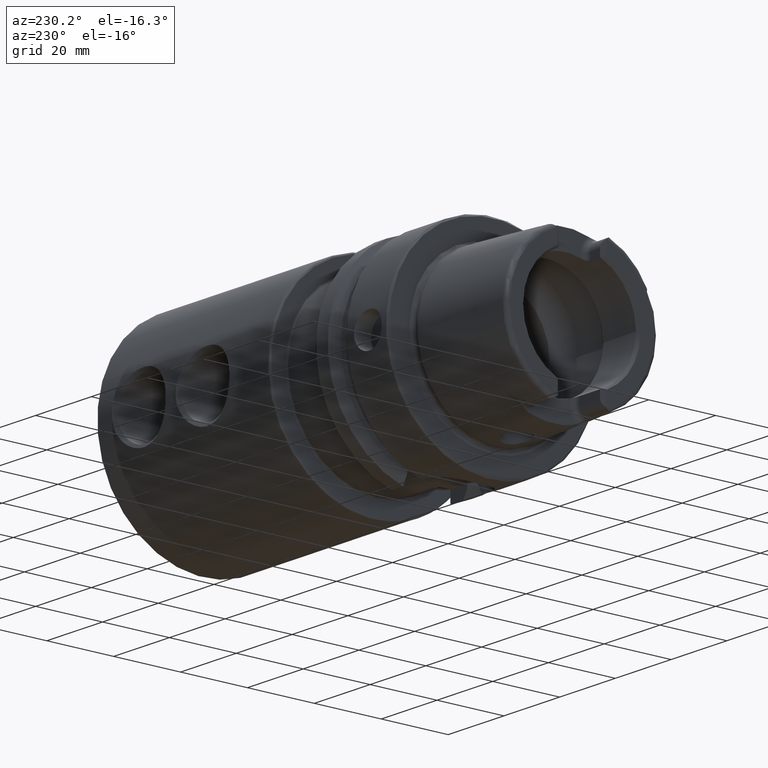
[diagram: clean part render]
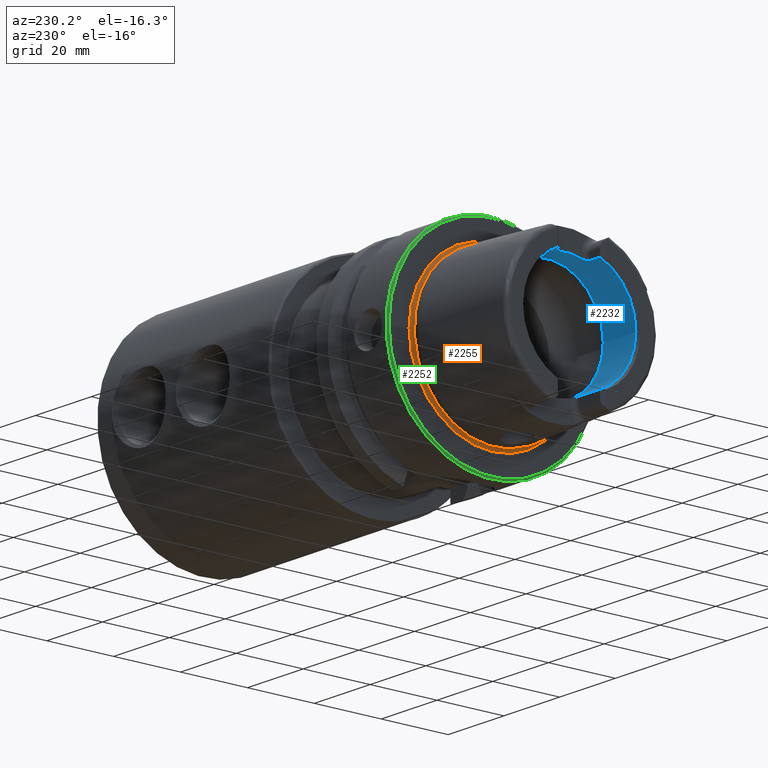
[diagram: same view with three faces highlighted in distinct colors, each labeled with its STEP entity id]
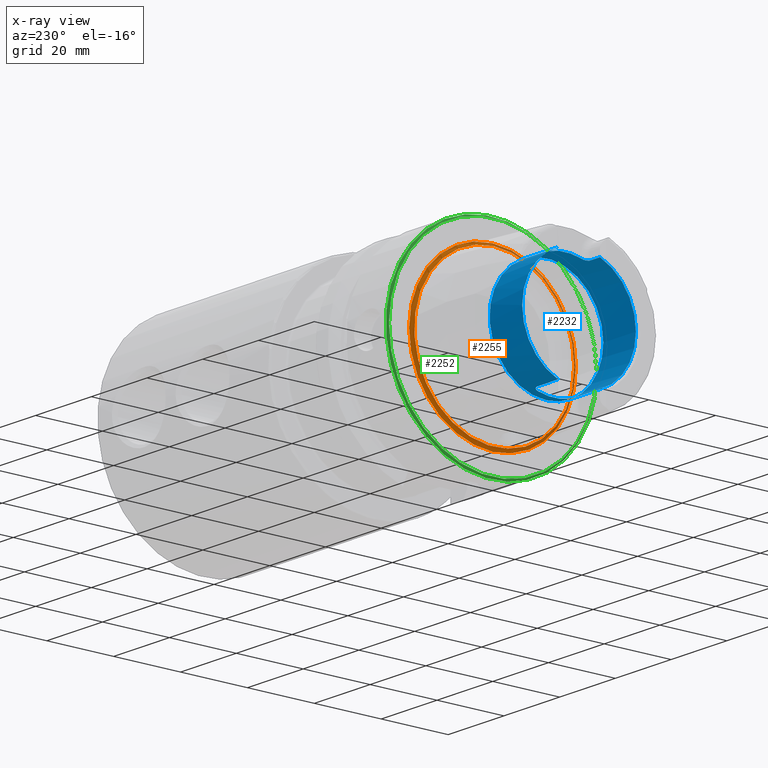
[diagram: x-ray of the same camera — body ghosted, the three highlighted faces saturated]
A machine part, auxiliary view with three faces highlighted in distinct colors.
The next image is the same camera in x-ray (body ghosted, the three faces saturated) — at least one of them is partly hidden behind the body in this view.
Their STEP definitions:

[orange] entity #2255 — the highlighted toroidal blend (fillet) surface has major radius 24.8204 mm and minor (blend) radius 0.8 mm.
#97=TOROIDAL_SURFACE('',#2541,24.8204308617234,0.8);
#361=FACE_OUTER_BOUND('',#505,.T.);
#505=EDGE_LOOP('',(#2107,#2108,#2109,#2110,#2111,#2112));
#863=CIRCLE('',#2530,24.9317693424915);
#864=CIRCLE('',#2531,24.9317693424915);
#868=CIRCLE('',#2539,24.0204308617234);
#869=CIRCLE('',#2540,24.0204308617234);
#870=CIRCLE('',#2542,0.8);
#1086=VERTEX_POINT('',#5122);
#1087=VERTEX_POINT('',#5123);
#1091=VERTEX_POINT('',#5139);
#1092=VERTEX_POINT('',#5140);
#1421=EDGE_CURVE('',#1086,#1087,#863,.T.);
#1422=EDGE_CURVE('',#1087,#1086,#864,.T.);
#1429=EDGE_CURVE('',#1091,#1092,#868,.T.);
#1431=EDGE_CURVE('',#1092,#1091,#869,.T.);
#1432=EDGE_CURVE('',#1092,#1087,#870,.T.);
#2107=ORIENTED_EDGE('',*,*,#1429,.T.);
#2108=ORIENTED_EDGE('',*,*,#1432,.T.);
#2109=ORIENTED_EDGE('',*,*,#1421,.F.);
#2110=ORIENTED_EDGE('',*,*,#1422,.F.);
#2111=ORIENTED_EDGE('',*,*,#1432,.F.);
#2112=ORIENTED_EDGE('',*,*,#1431,.T.);
#2255=ADVANCED_FACE('',(#361),#97,.F.);
#2530=AXIS2_PLACEMENT_3D('',#5124,#3160,#3161);
#2531=AXIS2_PLACEMENT_3D('',#5125,#3162,#3163);
#2539=AXIS2_PLACEMENT_3D('',#5141,#3181,#3182);
#2540=AXIS2_PLACEMENT_3D('',#5143,#3184,#3185);
#2541=AXIS2_PLACEMENT_3D('',#5144,#3186,#3187);
#2542=AXIS2_PLACEMENT_3D('',#5145,#3188,#3189);
#3160=DIRECTION('center_axis',(1.,0.,0.));
#3161=DIRECTION('ref_axis',(0.,0.,-1.));
#3162=DIRECTION('center_axis',(1.,0.,0.));
#3163=DIRECTION('ref_axis',(0.,0.,-1.));
#3181=DIRECTION('center_axis',(1.,0.,0.));
#3182=DIRECTION('ref_axis',(0.,0.,-1.));
#3184=DIRECTION('center_axis',(1.,0.,0.));
#3185=DIRECTION('ref_axis',(0.,0.,-1.));
#3186=DIRECTION('center_axis',(1.,0.,0.));
#3187=DIRECTION('ref_axis',(0.,0.,-1.));
#3188=DIRECTION('center_axis',(0.,-1.,-1.22464679914735E-16));
#3189=DIRECTION('ref_axis',(0.,-1.22464679914735E-16,1.));
#5122=CARTESIAN_POINT('',(0.092214454993257,-24.9317693424915,-3.05326115223623E-15));
#5123=CARTESIAN_POINT('',(0.0922144549932569,-3.05326115223623E-15,24.9317693424915));
#5124=CARTESIAN_POINT('Origin',(0.0922144549932569,0.,0.));
#5125=CARTESIAN_POINT('Origin',(0.0922144549932569,0.,0.));
#5139=CARTESIAN_POINT('',(-0.7,-24.0204308617234,-2.94165437689499E-15));
#5140=CARTESIAN_POINT('',(-0.7,-2.94165437689499E-15,24.0204308617234));
#5141=CARTESIAN_POINT('Origin',(-0.7,0.,0.));
#5143=CARTESIAN_POINT('Origin',(-0.7,0.,0.));
#5144=CARTESIAN_POINT('Origin',(-0.7,0.,0.));
#5145=CARTESIAN_POINT('Origin',(-0.7,-3.03962612082678E-15,24.8204308617234));

[blue] entity #2232 — the highlighted cylindrical surface (bore or boss wall) has radius 17 mm, axis along (-1, 0, 0).
#179=B_SPLINE_CURVE_WITH_KNOTS('',3,(#4983,#4984,#4985,#4986,#4987,#4988,
#4989,#4990,#4991,#4992),.UNSPECIFIED.,.F.,.F.,(4,2,2,2,4),(0.229569660485746,
0.289239803007022,0.348909945528297,0.405407845050218,0.46190574457214),
 .UNSPECIFIED.);
#180=B_SPLINE_CURVE_WITH_KNOTS('',3,(#5001,#5002,#5003,#5004,#5005,#5006,
#5007,#5008,#5009,#5010),.UNSPECIFIED.,.F.,.F.,(4,2,2,2,4),(0.46190574457214,
0.519239917776744,0.576574090981348,0.635410522815223,0.694246954649097),
 .UNSPECIFIED.);
#181=B_SPLINE_CURVE_WITH_KNOTS('',3,(#5019,#5020,#5021,#5022,#5023,#5024,
#5025,#5026,#5027,#5028),.UNSPECIFIED.,.F.,.F.,(4,2,2,2,4),(0.461905744572139,
0.518403644094061,0.574901543615982,0.634571686137257,0.694241828658533),
 .UNSPECIFIED.);
#182=B_SPLINE_CURVE_WITH_KNOTS('',3,(#5042,#5043,#5044,#5045,#5046,#5047,
#5048,#5049,#5050,#5051),.UNSPECIFIED.,.F.,.F.,(4,2,2,2,4),(0.229569660485747,
0.289239803007022,0.348909945528297,0.405407845050218,0.46190574457214),
 .UNSPECIFIED.);
#230=CYLINDRICAL_SURFACE('',#2488,17.);
#338=FACE_OUTER_BOUND('',#478,.T.);
#478=EDGE_LOOP('',(#1994,#1995,#1996,#1997,#1998,#1999,#2000,#2001,#2002,
#2003,#2004,#2005,#2006,#2007,#2008,#2009,#2010));
#536=LINE('',#3822,#653);
#542=LINE('',#3838,#659);
#548=LINE('',#3893,#665);
#552=LINE('',#3959,#669);
#614=LINE('',#5066,#731);
#653=VECTOR('',#2695,10.);
#659=VECTOR('',#2709,10.);
#665=VECTOR('',#2731,10.);
#669=VECTOR('',#2755,10.);
#731=VECTOR('',#3075,17.);
#834=CIRCLE('',#2476,17.);
#839=CIRCLE('',#2487,17.);
#840=CIRCLE('',#2489,17.);
#841=CIRCLE('',#2490,17.);
#842=CIRCLE('',#2491,17.);
#843=CIRCLE('',#2492,17.);
#844=CIRCLE('',#2493,17.);
#922=VERTEX_POINT('',#3775);
#929=VERTEX_POINT('',#3821);
#932=VERTEX_POINT('',#3828);
#935=VERTEX_POINT('',#3836);
#943=VERTEX_POINT('',#3883);
#946=VERTEX_POINT('',#3891);
#953=VERTEX_POINT('',#3926);
#958=VERTEX_POINT('',#3958);
#1065=VERTEX_POINT('',#4981);
#1067=VERTEX_POINT('',#5000);
#1069=VERTEX_POINT('',#5018);
#1070=VERTEX_POINT('',#5035);
#1072=VERTEX_POINT('',#5062);
#1073=VERTEX_POINT('',#5063);
#1074=VERTEX_POINT('',#5065);
#1170=EDGE_CURVE('',#929,#922,#536,.T.);
#1178=EDGE_CURVE('',#932,#935,#542,.T.);
#1191=EDGE_CURVE('',#943,#946,#548,.T.);
#1205=EDGE_CURVE('',#958,#953,#552,.T.);
#1371=EDGE_CURVE('',#1065,#946,#179,.T.);
#1375=EDGE_CURVE('',#958,#1067,#180,.T.);
#1380=EDGE_CURVE('',#929,#1069,#181,.T.);
#1384=EDGE_CURVE('',#1070,#1069,#834,.T.);
#1388=EDGE_CURVE('',#1070,#935,#182,.T.);
#1392=EDGE_CURVE('',#1065,#1067,#839,.T.);
#1393=EDGE_CURVE('',#1072,#1073,#840,.T.);
#1394=EDGE_CURVE('',#1072,#1074,#614,.T.);
#1395=EDGE_CURVE('',#943,#1074,#841,.T.);
#1396=EDGE_CURVE('',#932,#953,#842,.T.);
#1397=EDGE_CURVE('',#1074,#922,#843,.T.);
#1398=EDGE_CURVE('',#1073,#1072,#844,.T.);
#1994=ORIENTED_EDGE('',*,*,#1393,.F.);
#1995=ORIENTED_EDGE('',*,*,#1394,.T.);
#1996=ORIENTED_EDGE('',*,*,#1395,.F.);
#1997=ORIENTED_EDGE('',*,*,#1191,.T.);
#1998=ORIENTED_EDGE('',*,*,#1371,.F.);
#1999=ORIENTED_EDGE('',*,*,#1392,.T.);
#2000=ORIENTED_EDGE('',*,*,#1375,.F.);
#2001=ORIENTED_EDGE('',*,*,#1205,.T.);
#2002=ORIENTED_EDGE('',*,*,#1396,.F.);
#2003=ORIENTED_EDGE('',*,*,#1178,.T.);
#2004=ORIENTED_EDGE('',*,*,#1388,.F.);
#2005=ORIENTED_EDGE('',*,*,#1384,.T.);
#2006=ORIENTED_EDGE('',*,*,#1380,.F.);
#2007=ORIENTED_EDGE('',*,*,#1170,.T.);
#2008=ORIENTED_EDGE('',*,*,#1397,.F.);
#2009=ORIENTED_EDGE('',*,*,#1394,.F.);
#2010=ORIENTED_EDGE('',*,*,#1398,.F.);
#2232=ADVANCED_FACE('',(#338),#230,.F.);
#2476=AXIS2_PLACEMENT_3D('',#5036,#3045,#3046);
#2487=AXIS2_PLACEMENT_3D('',#5060,#3069,#3070);
#2488=AXIS2_PLACEMENT_3D('',#5061,#3071,#3072);
#2489=AXIS2_PLACEMENT_3D('',#5064,#3073,#3074);
#2490=AXIS2_PLACEMENT_3D('',#5067,#3076,#3077);
#2491=AXIS2_PLACEMENT_3D('',#5068,#3078,#3079);
#2492=AXIS2_PLACEMENT_3D('',#5069,#3080,#3081);
#2493=AXIS2_PLACEMENT_3D('',#5070,#3082,#3083);
#2695=DIRECTION('',(-1.,0.,0.));
#2709=DIRECTION('',(1.,0.,0.));
#2731=DIRECTION('',(1.,0.,0.));
#2755=DIRECTION('',(-1.,0.,0.));
#3045=DIRECTION('center_axis',(-1.,0.,0.));
#3046=DIRECTION('ref_axis',(0.,1.,0.));
#3069=DIRECTION('center_axis',(-1.,0.,0.));
#3070=DIRECTION('ref_axis',(0.,1.,0.));
#3071=DIRECTION('center_axis',(-1.,0.,0.));
#3072=DIRECTION('ref_axis',(0.,1.,0.));
#3073=DIRECTION('center_axis',(-1.,0.,0.));
#3074=DIRECTION('ref_axis',(0.,0.,1.));
#3075=DIRECTION('',(-1.,0.,0.));
#3076=DIRECTION('center_axis',(1.,0.,0.));
#3077=DIRECTION('ref_axis',(0.,-1.,0.));
#3078=DIRECTION('center_axis',(1.,0.,0.));
#3079=DIRECTION('ref_axis',(0.,-1.,0.));
#3080=DIRECTION('center_axis',(1.,0.,0.));
#3081=DIRECTION('ref_axis',(0.,-1.,0.));
#3082=DIRECTION('center_axis',(-1.,0.,0.));
#3083=DIRECTION('ref_axis',(0.,0.,1.));
#3775=CARTESIAN_POINT('',(-31.,-6.27,-15.8014904360317));
#3821=CARTESIAN_POINT('',(-23.5,-6.27,-15.8014904360317));
#3822=CARTESIAN_POINT('',(-25.6423502691896,-6.27,-15.8014904360317));
#3828=CARTESIAN_POINT('',(-31.,6.27,-15.8014904360317));
#3836=CARTESIAN_POINT('',(-23.5,6.27,-15.8014904360317));
#3838=CARTESIAN_POINT('',(-25.6423502691896,6.27,-15.8014904360317));
#3883=CARTESIAN_POINT('',(-31.,-6.27,15.8014904360317));
#3891=CARTESIAN_POINT('',(-27.5,-6.27,15.8014904360317));
#3893=CARTESIAN_POINT('',(-25.6423502691896,-6.27,15.8014904360317));
#3926=CARTESIAN_POINT('',(-31.,6.27,15.8014904360317));
#3958=CARTESIAN_POINT('',(-27.5,6.27,15.8014904360317));
#3959=CARTESIAN_POINT('',(-25.6423502691896,6.27,15.8014904360317));
#4981=CARTESIAN_POINT('',(-26.,-4.77,16.3170800083839));
#4983=CARTESIAN_POINT('Ctrl Pts',(-26.,-4.77,16.3170800083839));
#4984=CARTESIAN_POINT('Ctrl Pts',(-26.,-4.96091029208457,16.2612708750845));
#4985=CARTESIAN_POINT('Ctrl Pts',(-26.0385404635846,-5.16378617408596,16.1979610859593));
#4986=CARTESIAN_POINT('Ctrl Pts',(-26.1950909803916,-5.53690543536203,16.0742436586733));
#4987=CARTESIAN_POINT('Ctrl Pts',(-26.3130861154278,-5.70721093092864,16.01400454532));
#4988=CARTESIAN_POINT('Ctrl Pts',(-26.5811791540138,-5.96960590306613,15.9179857910505));
#4989=CARTESIAN_POINT('Ctrl Pts',(-26.7467155703026,-6.082078486584,15.8749745356799));
#4990=CARTESIAN_POINT('Ctrl Pts',(-27.1119229195206,-6.23232125085234,15.8165946761251));
#4991=CARTESIAN_POINT('Ctrl Pts',(-27.3116736682603,-6.27,15.8014904360317));
#4992=CARTESIAN_POINT('Ctrl Pts',(-27.5,-6.27,15.8014904360317));
#5000=CARTESIAN_POINT('',(-26.,4.77,16.3170800083839));
#5001=CARTESIAN_POINT('Ctrl Pts',(-27.5,6.27,15.8014904360317));
#5002=CARTESIAN_POINT('Ctrl Pts',(-27.308886089318,6.27,15.8014904360317));
#5003=CARTESIAN_POINT('Ctrl Pts',(-27.1064099842243,6.23121026569193,15.8170435837256));
#5004=CARTESIAN_POINT('Ctrl Pts',(-26.7371019784685,6.07691823919465,15.8769617281184));
#5005=CARTESIAN_POINT('Ctrl Pts',(-26.5701870418163,5.96150738537594,15.9210500039306));
#5006=CARTESIAN_POINT('Ctrl Pts',(-26.3050641818979,5.69638452545756,16.017853695422));
#5007=CARTESIAN_POINT('Ctrl Pts',(-26.1900212186221,5.52750941197086,16.0774506535614));
#5008=CARTESIAN_POINT('Ctrl Pts',(-26.0374824299787,5.15846789211413,16.1996292802954));
#5009=CARTESIAN_POINT('Ctrl Pts',(-26.,4.95824289522375,16.2620506397863));
#5010=CARTESIAN_POINT('Ctrl Pts',(-26.,4.77,16.3170800083839));
#5018=CARTESIAN_POINT('',(-22.,-4.77,-16.3170800083839));
#5019=CARTESIAN_POINT('Ctrl Pts',(-23.5,-6.27,-15.8014904360317));
#5020=CARTESIAN_POINT('Ctrl Pts',(-23.3116736682603,-6.27,-15.8014904360317));
#5021=CARTESIAN_POINT('Ctrl Pts',(-23.1119229195206,-6.23232125085234,-15.8165946761251));
#5022=CARTESIAN_POINT('Ctrl Pts',(-22.7467155703026,-6.082078486584,-15.8749745356799));
#5023=CARTESIAN_POINT('Ctrl Pts',(-22.5811791540138,-5.96960590306613,-15.9179857910505));
#5024=CARTESIAN_POINT('Ctrl Pts',(-22.3130861154278,-5.70721093092864,-16.01400454532));
#5025=CARTESIAN_POINT('Ctrl Pts',(-22.1950909803916,-5.53690543536204,-16.0742436586733));
#5026=CARTESIAN_POINT('Ctrl Pts',(-22.0385404635846,-5.16378617408596,-16.1979610859593));
#5027=CARTESIAN_POINT('Ctrl Pts',(-22.,-4.96091029208457,-16.2612708750845));
#5028=CARTESIAN_POINT('Ctrl Pts',(-22.,-4.77,-16.3170800083839));
#5035=CARTESIAN_POINT('',(-22.,4.77,-16.3170800083839));
#5036=CARTESIAN_POINT('Origin',(-22.,0.,0.));
#5042=CARTESIAN_POINT('Ctrl Pts',(-22.,4.77,-16.3170800083839));
#5043=CARTESIAN_POINT('Ctrl Pts',(-22.,4.96091029208457,-16.2612708750845));
#5044=CARTESIAN_POINT('Ctrl Pts',(-22.0385404635846,5.16378617408596,-16.1979610859593));
#5045=CARTESIAN_POINT('Ctrl Pts',(-22.1950909803916,5.53690543536204,-16.0742436586733));
#5046=CARTESIAN_POINT('Ctrl Pts',(-22.3130861154278,5.70721093092864,-16.01400454532));
#5047=CARTESIAN_POINT('Ctrl Pts',(-22.5811791540138,5.96960590306613,-15.9179857910505));
#5048=CARTESIAN_POINT('Ctrl Pts',(-22.7467155703026,6.082078486584,-15.8749745356799));
#5049=CARTESIAN_POINT('Ctrl Pts',(-23.1119229195206,6.23232125085234,-15.8165946761251));
#5050=CARTESIAN_POINT('Ctrl Pts',(-23.3116736682603,6.27,-15.8014904360317));
#5051=CARTESIAN_POINT('Ctrl Pts',(-23.5,6.27,-15.8014904360317));
#5060=CARTESIAN_POINT('Origin',(-26.,0.,0.));
#5061=CARTESIAN_POINT('Origin',(-25.6423502691896,0.,0.));
#5062=CARTESIAN_POINT('',(-19.2847005383793,-17.,2.0818995585505E-15));
#5063=CARTESIAN_POINT('',(-19.2847005383793,-2.0818995585505E-15,-17.));
#5064=CARTESIAN_POINT('Origin',(-19.2847005383793,0.,0.));
#5065=CARTESIAN_POINT('',(-31.,-17.,2.0818995585505E-15));
#5066=CARTESIAN_POINT('',(-25.6423502691896,-17.,2.0818995585505E-15));
#5067=CARTESIAN_POINT('Origin',(-31.,0.,0.));
#5068=CARTESIAN_POINT('Origin',(-31.,0.,0.));
#5069=CARTESIAN_POINT('Origin',(-31.,0.,0.));
#5070=CARTESIAN_POINT('Origin',(-19.2847005383793,0.,0.));

[green] entity #2252 — the highlighted conical surface has half-angle 45 deg.
#358=FACE_OUTER_BOUND('',#502,.T.);
#502=EDGE_LOOP('',(#2094,#2095,#2096,#2097));
#620=LINE('',#5133,#737);
#737=VECTOR('',#3173,31.25);
#825=CIRCLE('',#2457,31.5);
#866=CIRCLE('',#2534,31.);
#1063=VERTEX_POINT('',#4974);
#1089=VERTEX_POINT('',#5130);
#1368=EDGE_CURVE('',#1063,#1063,#825,.T.);
#1425=EDGE_CURVE('',#1089,#1089,#866,.T.);
#1426=EDGE_CURVE('',#1063,#1089,#620,.T.);
#2094=ORIENTED_EDGE('',*,*,#1368,.F.);
#2095=ORIENTED_EDGE('',*,*,#1426,.T.);
#2096=ORIENTED_EDGE('',*,*,#1425,.T.);
#2097=ORIENTED_EDGE('',*,*,#1426,.F.);
#2127=CONICAL_SURFACE('',#2535,31.25,0.785398163397447);
#2252=ADVANCED_FACE('',(#358),#2127,.T.);
#2457=AXIS2_PLACEMENT_3D('',#4976,#3003,#3004);
#2534=AXIS2_PLACEMENT_3D('',#5131,#3169,#3170);
#2535=AXIS2_PLACEMENT_3D('',#5132,#3171,#3172);
#3003=DIRECTION('center_axis',(1.,0.,0.));
#3004=DIRECTION('ref_axis',(0.,0.,-1.));
#3169=DIRECTION('center_axis',(1.,0.,0.));
#3170=DIRECTION('ref_axis',(0.,0.,-1.));
#3171=DIRECTION('center_axis',(1.,0.,0.));
#3172=DIRECTION('ref_axis',(0.,1.,0.));
#3173=DIRECTION('',(-0.707106781186549,0.707106781186546,8.65956056235492E-17));
#4974=CARTESIAN_POINT('',(0.5,-31.5,-3.85763741731416E-15));
#4976=CARTESIAN_POINT('Origin',(0.5,0.,0.));
#5130=CARTESIAN_POINT('',(-5.89805981832114E-16,-31.,-3.7964050773568E-15));
#5131=CARTESIAN_POINT('Origin',(0.,0.,0.));
#5132=CARTESIAN_POINT('Origin',(0.25,0.,0.));
#5133=CARTESIAN_POINT('',(0.25,-31.25,-3.82702124733548E-15));